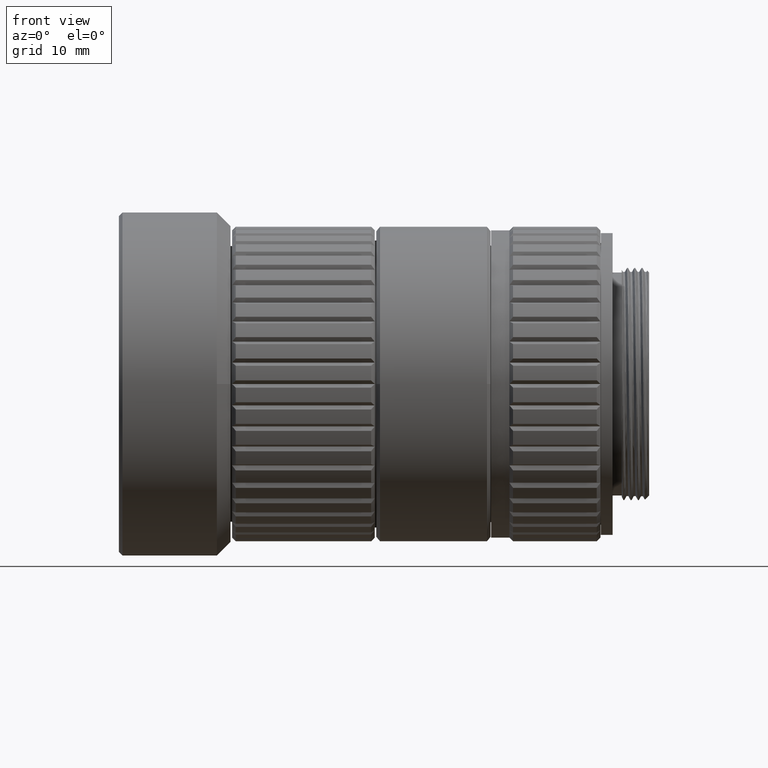
[diagram: clean part render]
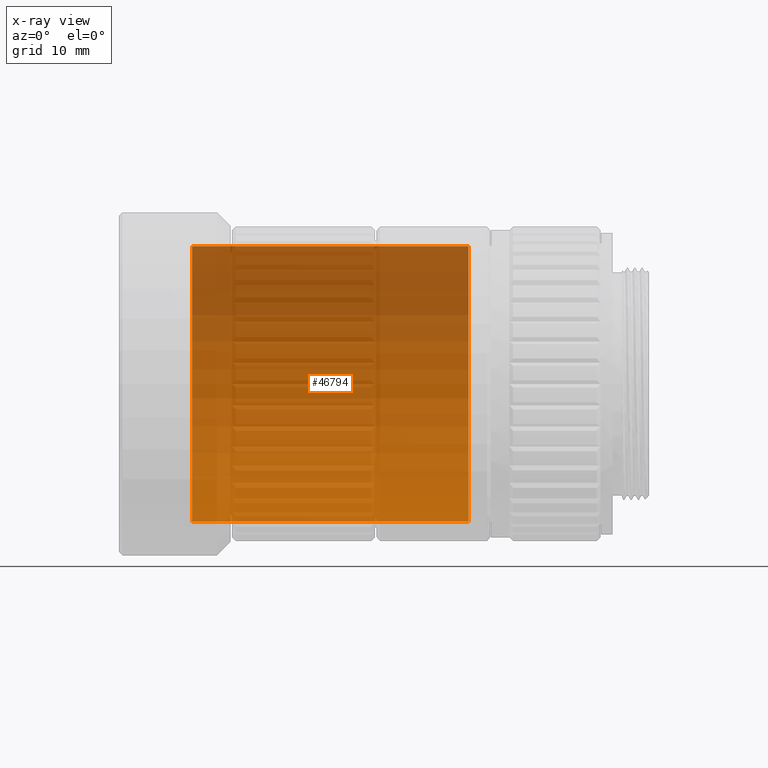
[diagram: x-ray — body ghosted, one internal face saturated and labeled with its STEP entity id]
A machine part, front view, then the same camera in x-ray: the body is ghosted and one INTERNAL B-rep face — a face not visible from any outside direction — is saturated and labeled: STEP entity #46794.
In plain terms, the highlighted cylindrical surface (partial cylindrical patch) has radius 15.0581 mm, axis along (1, -0, -0).
Its self-contained STEP definition (entity closure, byte-faithful):
#146 = ORIENTED_EDGE ( 'NONE', *, *, #67160, .T. ) ;
#480 = VECTOR ( 'NONE', #60047, 1000.000000000000000 ) ;
#3371 = CYLINDRICAL_SURFACE ( 'NONE', #54287, 15.05811086071999938 ) ;
#7736 = LINE ( 'NONE', #54734, #29803 ) ;
#9630 = VERTEX_POINT ( 'NONE', #24021 ) ;
#10136 = CARTESIAN_POINT ( 'NONE',  ( 5.016100102300004693, 0.000000000000000000, -15.05811086071999938 ) ) ;
#11064 = DIRECTION ( 'NONE',  ( 0.000000000000000000, 0.000000000000000000, -1.000000000000000000 ) ) ;
#13015 = AXIS2_PLACEMENT_3D ( 'NONE', #20475, #26396, #11064 ) ;
#16962 = ORIENTED_EDGE ( 'NONE', *, *, #60166, .F. ) ;
#17872 = CARTESIAN_POINT ( 'NONE',  ( 5.016100102300004693, 0.000000000000000000, 0.000000000000000000 ) ) ;
#20475 = CARTESIAN_POINT ( 'NONE',  ( 35.23999999999615085, 0.000000000000000000, 0.000000000000000000 ) ) ;
#23797 = DIRECTION ( 'NONE',  ( 0.000000000000000000, 0.000000000000000000, 1.000000000000000000 ) ) ;
#24021 = CARTESIAN_POINT ( 'NONE',  ( 5.016100102300004693, 1.844086726678674463E-15, 15.05811086071999938 ) ) ;
#26396 = DIRECTION ( 'NONE',  ( -1.000000000000000000, 0.000000000000000000, 0.000000000000000000 ) ) ;
#29803 = VECTOR ( 'NONE', #44299, 1000.000000000000000 ) ;
#30198 = FACE_OUTER_BOUND ( 'NONE', #32931, .T. ) ;
#32931 = EDGE_LOOP ( 'NONE', ( #58026, #146, #50147, #16962 ) ) ;
#34586 = DIRECTION ( 'NONE',  ( -1.000000000000000000, 0.000000000000000000, 0.000000000000000000 ) ) ;
#34743 = DIRECTION ( 'NONE',  ( 0.000000000000000000, 0.000000000000000000, -1.000000000000000000 ) ) ;
#35551 = CIRCLE ( 'NONE', #57807, 15.05811086071999938 ) ;
#43010 = CARTESIAN_POINT ( 'NONE',  ( 5.016100102300004693, 1.844086726678674463E-15, 15.05811086071999938 ) ) ;
#44059 = VERTEX_POINT ( 'NONE', #56746 ) ;
#44299 = DIRECTION ( 'NONE',  ( 1.000000000000000000, -0.000000000000000000, -0.000000000000000000 ) ) ;
#46185 = CARTESIAN_POINT ( 'NONE',  ( 5.016100102300004693, 0.000000000000000000, 0.000000000000000000 ) ) ;
#46794 = ADVANCED_FACE ( 'NONE', ( #30198 ), #3371, .T. ) ;
#46918 = VERTEX_POINT ( 'NONE', #67792 ) ;
#47531 = LINE ( 'NONE', #43010, #480 ) ;
#49680 = CIRCLE ( 'NONE', #13015, 15.05811086071999938 ) ;
#50147 = ORIENTED_EDGE ( 'NONE', *, *, #55540, .T. ) ;
#54287 = AXIS2_PLACEMENT_3D ( 'NONE', #46185, #60844, #34743 ) ;
#54734 = CARTESIAN_POINT ( 'NONE',  ( 5.016100102300004693, 0.000000000000000000, -15.05811086071999938 ) ) ;
#55540 = EDGE_CURVE ( 'NONE', #44059, #46918, #49680, .T. ) ;
#56746 = CARTESIAN_POINT ( 'NONE',  ( 35.23999999999615085, 1.844086726678674463E-15, 15.05811086071999938 ) ) ;
#57807 = AXIS2_PLACEMENT_3D ( 'NONE', #17872, #34586, #23797 ) ;
#58026 = ORIENTED_EDGE ( 'NONE', *, *, #62740, .F. ) ;
#60047 = DIRECTION ( 'NONE',  ( 1.000000000000000000, -0.000000000000000000, -0.000000000000000000 ) ) ;
#60166 = EDGE_CURVE ( 'NONE', #68776, #46918, #7736, .T. ) ;
#60844 = DIRECTION ( 'NONE',  ( 1.000000000000000000, -0.000000000000000000, -0.000000000000000000 ) ) ;
#62740 = EDGE_CURVE ( 'NONE', #9630, #68776, #35551, .T. ) ;
#67160 = EDGE_CURVE ( 'NONE', #9630, #44059, #47531, .T. ) ;
#67792 = CARTESIAN_POINT ( 'NONE',  ( 35.23999999999615085, 0.000000000000000000, -15.05811086071999938 ) ) ;
#68776 = VERTEX_POINT ( 'NONE', #10136 ) ;